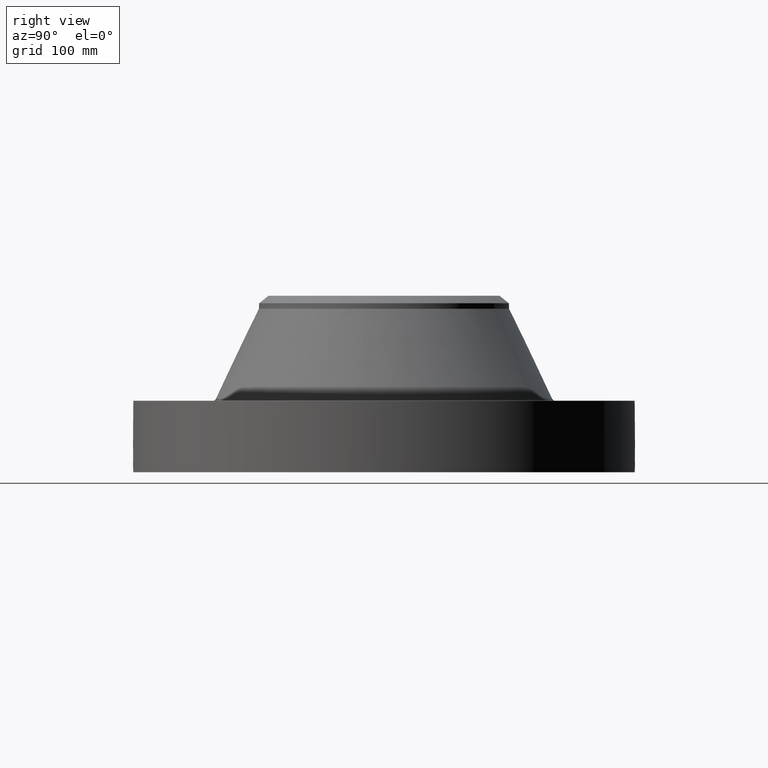
[diagram: clean part render]
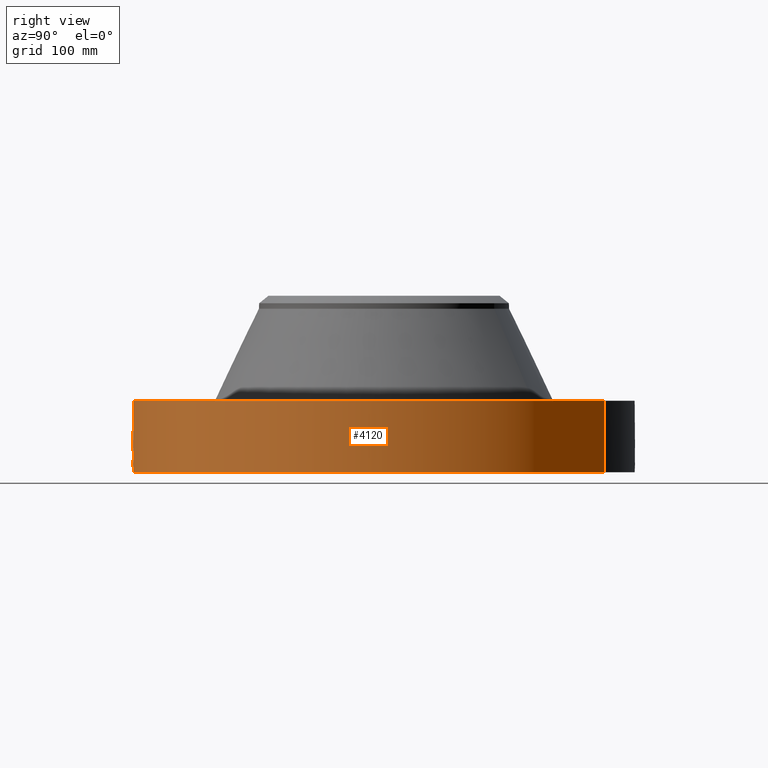
[diagram: same view with one face highlighted and labeled with its STEP entity id]
A machine part, right view. The second image highlights one B-rep face of the part: STEP entity #4120.
In plain terms, the highlighted cylindrical surface (partial cylindrical patch) has radius 273.05 mm, axis along (0, 0, -1).
Its self-contained STEP definition (entity closure, byte-faithful):
#2918=AXIS2_PLACEMENT_3D('Circle Axis2P3D',#2916,#2917,$) ;
#3907=AXIS2_PLACEMENT_3D('Cylinder Axis2P3D',#3904,#3905,#3906) ;
#4024=AXIS2_PLACEMENT_3D('Circle Axis2P3D',#4022,#4023,$) ;
#2916=CARTESIAN_POINT('Axis2P3D Location',(0.,0.,3.06200000001)) ;
#2920=CARTESIAN_POINT('Vertex',(5.15382454002,9.43401254036,3.06200000001)) ;
#2922=CARTESIAN_POINT('Vertex',(-5.15382454002,-9.43401254036,3.06200000001)) ;
#3904=CARTESIAN_POINT('Axis2P3D Location',(0.,0.,3.78100000002)) ;
#3913=CARTESIAN_POINT('Vertex',(-5.15382454002,-9.43401254036,1.1189649382E-015)) ;
#3915=CARTESIAN_POINT('Vertex',(5.15382454002,9.43401254036,1.1189649382E-015)) ;
#3918=CARTESIAN_POINT('Line Origine',(-5.15382454002,-9.43401254036,1.53100000001)) ;
#3923=CARTESIAN_POINT('Line Origine',(5.15382454002,9.43401254036,1.53100000001)) ;
#4022=CARTESIAN_POINT('Axis2P3D Location',(0.,0.,1.1189649382E-015)) ;
#4034=CARTESIAN_POINT('Control Point',(0.0567911580159,-10.749849988,1.09953066565)) ;
#4035=CARTESIAN_POINT('Control Point',(0.0382607917965,-10.7499478834,1.10254463038)) ;
#4036=CARTESIAN_POINT('Control Point',(0.0194899697249,-10.7499987257,1.10408046883)) ;
#4037=CARTESIAN_POINT('Control Point',(0.000716018609138,-10.7499999762,1.10411849942)) ;
#4038=CARTESIAN_POINT('Vertex',(0.0567786029696,-10.7498503151,1.09953298772)) ;
#4040=CARTESIAN_POINT('Vertex',(0.000715917067038,-10.7499999762,1.10411850989)) ;
#4044=CARTESIAN_POINT('Control Point',(0.0567785051351,-10.7498500549,1.09953241646)) ;
#4045=CARTESIAN_POINT('Control Point',(0.0966609943144,-10.7496394037,1.09488611197)) ;
#4046=CARTESIAN_POINT('Control Point',(0.135841720311,-10.7492020644,1.08297077304)) ;
#4047=CARTESIAN_POINT('Control Point',(0.171864801757,-10.7486260746,1.06462752922)) ;
#4048=CARTESIAN_POINT('Vertex',(0.171864801758,-10.7486260746,1.06462752922)) ;
#4052=CARTESIAN_POINT('Control Point',(0.0305849635117,-10.7499564911,0.341157246872)) ;
#4053=CARTESIAN_POINT('Control Point',(0.0995195743383,-10.7497603636,0.349904448042)) ;
#4054=CARTESIAN_POINT('Control Point',(0.166100801981,-10.7490183691,0.374153508162)) ;
#4055=CARTESIAN_POINT('Control Point',(0.225415864165,-10.7478174889,0.413028390955)) ;
#4056=CARTESIAN_POINT('Control Point',(0.297416311043,-10.7459654521,0.487044319258)) ;
#4057=CARTESIAN_POINT('Control Point',(0.341890646378,-10.7445741103,0.577030567524)) ;
#4058=CARTESIAN_POINT('Control Point',(0.353305833234,-10.7441977759,0.607759337499)) ;
#4059=CARTESIAN_POINT('Control Point',(0.371781674252,-10.7435740429,0.679149754889)) ;
#4060=CARTESIAN_POINT('Control Point',(0.373464766947,-10.7435087126,0.752550428457)) ;
#4061=CARTESIAN_POINT('Control Point',(0.36910504273,-10.7436639577,0.79324629918)) ;
#4062=CARTESIAN_POINT('Control Point',(0.346835507679,-10.7444360513,0.885381885051)) ;
#4063=CARTESIAN_POINT('Control Point',(0.297852114556,-10.745933534,0.966636986909)) ;
#4064=CARTESIAN_POINT('Control Point',(0.261839346066,-10.7469281328,1.00745832403)) ;
#4065=CARTESIAN_POINT('Control Point',(0.219078120264,-10.7478711588,1.04058612392)) ;
#4066=CARTESIAN_POINT('Control Point',(0.171864801757,-10.7486260746,1.06462752922)) ;
#4067=CARTESIAN_POINT('Vertex',(0.0305849635117,-10.7499564911,0.341157246872)) ;
#4071=CARTESIAN_POINT('Control Point',(0.0305849635117,-10.7499564911,0.341157246872)) ;
#4072=CARTESIAN_POINT('Control Point',(0.0203845311994,-10.7499855126,0.340869975579)) ;
#4073=CARTESIAN_POINT('Control Point',(0.0101780214078,-10.7500000026,0.340942613548)) ;
#4074=CARTESIAN_POINT('Control Point',(-2.72878353562E-006,-10.75,0.341374667805)) ;
#4075=CARTESIAN_POINT('Vertex',(-2.72878353729E-006,-10.75,0.341374667805)) ;
#4079=CARTESIAN_POINT('Control Point',(-0.192994359745,-10.7482674501,0.396736654106)) ;
#4080=CARTESIAN_POINT('Control Point',(-0.149148210396,-10.7490547453,0.37164388296)) ;
#4081=CARTESIAN_POINT('Control Point',(-0.101145838374,-10.7496790029,0.353642043185)) ;
#4082=CARTESIAN_POINT('Control Point',(-0.0508155768685,-10.7499999871,0.343531076645)) ;
#4083=CARTESIAN_POINT('Control Point',(-2.72878353563E-006,-10.75,0.341374667805)) ;
#4084=CARTESIAN_POINT('Vertex',(-0.192994359745,-10.7482674501,0.396736654106)) ;
#4088=CARTESIAN_POINT('Control Point',(-0.192994359745,-10.7482674501,0.396736654106)) ;
#4089=CARTESIAN_POINT('Control Point',(-0.221848519657,-10.7477493489,0.41324963831)) ;
#4090=CARTESIAN_POINT('Control Point',(-0.249019942468,-10.7471646063,0.43264102898)) ;
#4091=CARTESIAN_POINT('Control Point',(-0.274104241925,-10.7465429509,0.454726455945)) ;
#4092=CARTESIAN_POINT('Control Point',(-0.340614582467,-10.7447180983,0.526853948184)) ;
#4093=CARTESIAN_POINT('Control Point',(-0.382738263744,-10.7432168248,0.616816595695)) ;
#4094=CARTESIAN_POINT('Control Point',(-0.397428634088,-10.7426387549,0.681363798042)) ;
#4095=CARTESIAN_POINT('Control Point',(-0.397846491235,-10.7426626108,0.808339942021)) ;
#4096=CARTESIAN_POINT('Control Point',(-0.34800814071,-10.7444099647,0.923403285577)) ;
#4097=CARTESIAN_POINT('Control Point',(-0.312903280547,-10.7455631425,0.973099165003)) ;
#4098=CARTESIAN_POINT('Control Point',(-0.234583432935,-10.7476755031,1.04721943469)) ;
#4099=CARTESIAN_POINT('Control Point',(-0.137661984647,-10.7492549665,1.08962322106)) ;
#4100=CARTESIAN_POINT('Control Point',(-0.0921849841353,-10.7497559084,1.10158731153)) ;
#4101=CARTESIAN_POINT('Control Point',(-0.0458118506174,-10.7500001103,1.1064002962)) ;
#4102=CARTESIAN_POINT('Control Point',(2.58579355341E-005,-10.75,1.10415298431)) ;
#4103=CARTESIAN_POINT('Vertex',(2.58579355393E-005,-10.75,1.10415298431)) ;
#4107=CARTESIAN_POINT('Control Point',(0.00071591705717,-10.7499999762,1.10411850987)) ;
#4108=CARTESIAN_POINT('Control Point',(0.00037091172957,-10.7499999992,1.10413606717)) ;
#4109=CARTESIAN_POINT('Control Point',(2.58579409158E-005,-10.75,1.10415298431)) ;
#2917=DIRECTION('Axis2P3D Direction',(0.,0.,-0.0393700787402)) ;
#3905=DIRECTION('Axis2P3D Direction',(0.,0.,-0.0393700787402)) ;
#3906=DIRECTION('Axis2P3D XDirection',(0.0188750212049,0.0345504945626,0.)) ;
#3919=DIRECTION('Vector Direction',(0.,0.,-0.0393700787402)) ;
#3924=DIRECTION('Vector Direction',(0.,0.,-0.0393700787402)) ;
#4023=DIRECTION('Axis2P3D Direction',(0.,0.,-0.0393700787402)) ;
#3920=VECTOR('Line Direction',#3919,0.0393700787402) ;
#3925=VECTOR('Line Direction',#3924,0.0393700787402) ;
#4028=ORIENTED_EDGE('',*,*,#4026,.F.) ;
#4029=ORIENTED_EDGE('',*,*,#3927,.T.) ;
#4030=ORIENTED_EDGE('',*,*,#2924,.T.) ;
#4031=ORIENTED_EDGE('',*,*,#3922,.F.) ;
#4112=ORIENTED_EDGE('',*,*,#4042,.F.) ;
#4113=ORIENTED_EDGE('',*,*,#4050,.T.) ;
#4114=ORIENTED_EDGE('',*,*,#4069,.F.) ;
#4115=ORIENTED_EDGE('',*,*,#4077,.T.) ;
#4116=ORIENTED_EDGE('',*,*,#4086,.F.) ;
#4117=ORIENTED_EDGE('',*,*,#4105,.T.) ;
#4118=ORIENTED_EDGE('',*,*,#4110,.F.) ;
#4119=FACE_BOUND('',#4111,.T.) ;
#4120=ADVANCED_FACE('PartBody',(#4032,#4119),#3908,.T.) ;
#4033=B_SPLINE_CURVE_WITH_KNOTS('',3,(#4034,#4035,#4036,#4037),.UNSPECIFIED.,.F.,.U.,(4,4),(4.43847121212,6.52127022122),.UNSPECIFIED.) ;
#4043=B_SPLINE_CURVE_WITH_KNOTS('',3,(#4044,#4045,#4046,#4047),.UNSPECIFIED.,.F.,.U.,(4,4),(0.,4.51158031005),.UNSPECIFIED.) ;
#4051=B_SPLINE_CURVE_WITH_KNOTS('',5,(#4052,#4053,#4054,#4055,#4056,#4057,#4058,#4059,#4060,#4061,#4062,#4063,#4064,#4065,#4066),.UNSPECIFIED.,.F.,.U.,(6,3,3,3,6),(0.,12.0763323713,17.9495279266,25.3608806638,35.2159825353),.UNSPECIFIED.) ;
#4070=B_SPLINE_CURVE_WITH_KNOTS('',3,(#4071,#4072,#4073,#4074),.UNSPECIFIED.,.F.,.U.,(4,4),(0.,1.06400746184),.UNSPECIFIED.) ;
#4078=B_SPLINE_CURVE_WITH_KNOTS('',4,(#4079,#4080,#4081,#4082,#4083),.UNSPECIFIED.,.F.,.U.,(5,5),(0.,7.08071582118),.UNSPECIFIED.) ;
#4087=B_SPLINE_CURVE_WITH_KNOTS('',5,(#4088,#4089,#4090,#4091,#4092,#4093,#4094,#4095,#4096,#4097,#4098,#4099,#4100,#4101,#4102),.UNSPECIFIED.,.F.,.U.,(6,3,3,3,6),(0.,5.82457369149,17.1408346611,27.8149305933,36.3829492187),.UNSPECIFIED.) ;
#4106=B_SPLINE_CURVE_WITH_KNOTS('',2,(#4107,#4108,#4109),.UNSPECIFIED.,.F.,.U.,(3,3),(1.03533572087,1.06113480653),.UNSPECIFIED.) ;
#2919=CIRCLE('generated circle',#2918,10.75) ;
#4025=CIRCLE('generated circle',#4024,10.75) ;
#3908=CYLINDRICAL_SURFACE('generated cylinder',#3907,10.75) ;
#2924=EDGE_CURVE('',#2921,#2923,#2919,.T.) ;
#3922=EDGE_CURVE('',#3914,#2923,#3921,.F.) ;
#3927=EDGE_CURVE('',#3916,#2921,#3926,.F.) ;
#4026=EDGE_CURVE('',#3916,#3914,#4025,.T.) ;
#4042=EDGE_CURVE('',#4039,#4041,#4033,.T.) ;
#4050=EDGE_CURVE('',#4039,#4049,#4043,.T.) ;
#4069=EDGE_CURVE('',#4068,#4049,#4051,.T.) ;
#4077=EDGE_CURVE('',#4068,#4076,#4070,.T.) ;
#4086=EDGE_CURVE('',#4085,#4076,#4078,.T.) ;
#4105=EDGE_CURVE('',#4085,#4104,#4087,.T.) ;
#4110=EDGE_CURVE('',#4041,#4104,#4106,.T.) ;
#4027=EDGE_LOOP('',(#4028,#4029,#4030,#4031)) ;
#4111=EDGE_LOOP('',(#4112,#4113,#4114,#4115,#4116,#4117,#4118)) ;
#4032=FACE_OUTER_BOUND('',#4027,.T.) ;
#3921=LINE('Line',#3918,#3920) ;
#3926=LINE('Line',#3923,#3925) ;
#2921=VERTEX_POINT('',#2920) ;
#2923=VERTEX_POINT('',#2922) ;
#3914=VERTEX_POINT('',#3913) ;
#3916=VERTEX_POINT('',#3915) ;
#4039=VERTEX_POINT('',#4038) ;
#4041=VERTEX_POINT('',#4040) ;
#4049=VERTEX_POINT('',#4048) ;
#4068=VERTEX_POINT('',#4067) ;
#4076=VERTEX_POINT('',#4075) ;
#4085=VERTEX_POINT('',#4084) ;
#4104=VERTEX_POINT('',#4103) ;